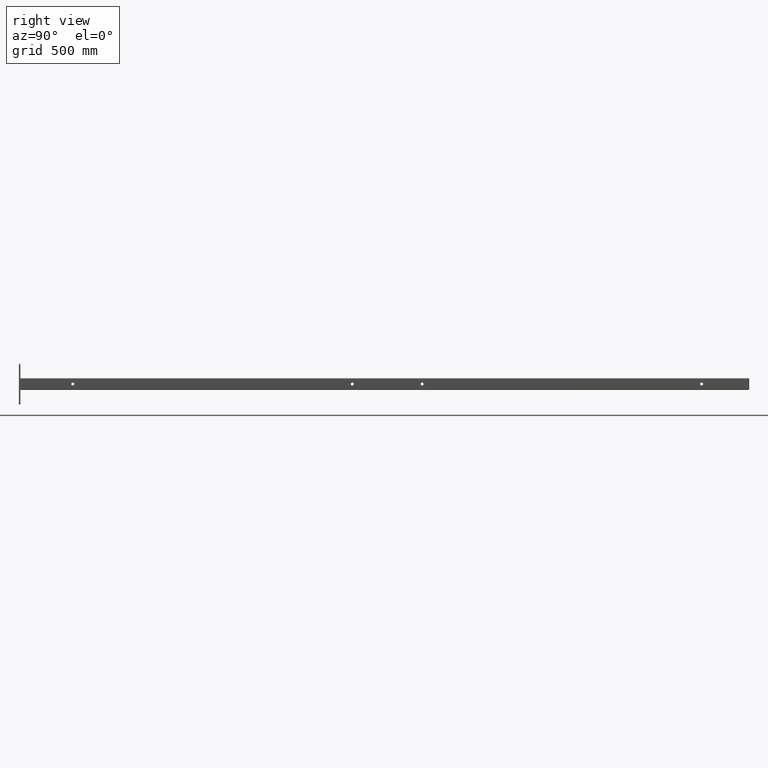
[diagram: clean part render]
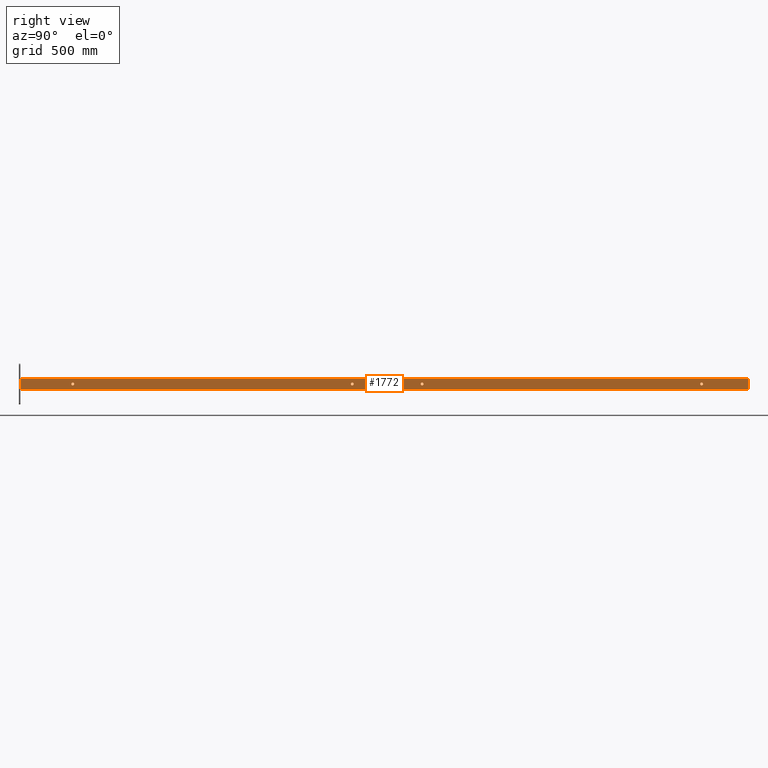
[diagram: same view with one face highlighted and labeled with its STEP entity id]
A machine part, right view. The second image highlights one B-rep face of the part: STEP entity #1772.
In plain terms, the highlighted planar face has unit normal (-1, 0, 0).
Its self-contained STEP definition (entity closure, byte-faithful):
#2 = CARTESIAN_POINT ( 'NONE',  ( 6.735557395310442023E-16, 1.000000000000000000, 5.500000000000001776 ) ) ;
#13 = EDGE_LOOP ( 'NONE', ( #418 ) ) ;
#26 = LINE ( 'NONE', #1633, #1251 ) ;
#82 = CARTESIAN_POINT ( 'NONE',  ( 0.8505999999999999117, 1.000000000000000000, 62.50000000000000000 ) ) ;
#150 = EDGE_CURVE ( 'NONE', #3414, #3571, #2774, .T. ) ;
#243 = VERTEX_POINT ( 'NONE', #2626 ) ;
#250 = EDGE_CURVE ( 'NONE', #2284, #2284, #4103, .T. ) ;
#386 = VECTOR ( 'NONE', #2468, 39.37007874015748143 ) ;
#400 = DIRECTION ( 'NONE',  ( 0.000000000000000000, 0.000000000000000000, 1.000000000000000000 ) ) ;
#403 = DIRECTION ( 'NONE',  ( 0.000000000000000000, 0.000000000000000000, 1.000000000000000000 ) ) ;
#418 = ORIENTED_EDGE ( 'NONE', *, *, #2341, .F. ) ;
#628 = DIRECTION ( 'NONE',  ( 0.000000000000000000, 1.000000000000000000, 0.000000000000000000 ) ) ;
#777 = ORIENTED_EDGE ( 'NONE', *, *, #1004, .F. ) ;
#911 = DIRECTION ( 'NONE',  ( -1.000000000000000000, 0.000000000000000000, 0.000000000000000000 ) ) ;
#1004 = EDGE_CURVE ( 'NONE', #2946, #2946, #2391, .T. ) ;
#1012 = FACE_OUTER_BOUND ( 'NONE', #3705, .T. ) ;
#1162 = ORIENTED_EDGE ( 'NONE', *, *, #150, .T. ) ;
#1186 = CARTESIAN_POINT ( 'NONE',  ( 0.8505999999999999117, 1.000000000000000000, -62.50000000000000000 ) ) ;
#1251 = VECTOR ( 'NONE', #911, 39.37007874015748143 ) ;
#1322 = CARTESIAN_POINT ( 'NONE',  ( -7.960204194457791533E-16, 1.000000000000000000, -6.249999999999997335 ) ) ;
#1345 = CARTESIAN_POINT ( 'NONE',  ( 0.8505999999999999117, 1.000000000000000000, 62.50000000000000000 ) ) ;
#1355 = DIRECTION ( 'NONE',  ( 0.000000000000000000, -1.000000000000000000, 0.000000000000000000 ) ) ;
#1363 = LINE ( 'NONE', #1655, #3857 ) ;
#1460 = CIRCLE ( 'NONE', #1790, 0.2500000000000030531 ) ;
#1536 = DIRECTION ( 'NONE',  ( 0.000000000000000000, 1.000000000000000000, 0.000000000000000000 ) ) ;
#1633 = CARTESIAN_POINT ( 'NONE',  ( 0.8505999999999999117, 1.000000000000000000, 62.50000000000000000 ) ) ;
#1655 = CARTESIAN_POINT ( 'NONE',  ( 0.8505999999999999117, 1.000000000000000000, 62.50000000000000000 ) ) ;
#1693 = VERTEX_POINT ( 'NONE', #1953 ) ;
#1772 = ADVANCED_FACE ( 'NONE', ( #3225, #3870, #2608, #3847, #1012 ), #3554, .F. ) ;
#1790 = AXIS2_PLACEMENT_3D ( 'NONE', #2178, #1536, #2804 ) ;
#1795 = CIRCLE ( 'NONE', #2652, 0.2500000000000030531 ) ;
#1953 = CARTESIAN_POINT ( 'NONE',  ( 6.556435184794231724E-15, 1.000000000000000000, 53.75000000000000711 ) ) ;
#2017 = ORIENTED_EDGE ( 'NONE', *, *, #2875, .F. ) ;
#2178 = CARTESIAN_POINT ( 'NONE',  ( 6.556435184794231724E-15, 1.000000000000000000, 53.50000000000000000 ) ) ;
#2224 = LINE ( 'NONE', #2554, #3522 ) ;
#2225 = ORIENTED_EDGE ( 'NONE', *, *, #2533, .F. ) ;
#2262 = DIRECTION ( 'NONE',  ( -0.000000000000000000, -0.000000000000000000, -1.000000000000000000 ) ) ;
#2284 = VERTEX_POINT ( 'NONE', #3607 ) ;
#2314 = DIRECTION ( 'NONE',  ( 0.000000000000000000, 1.000000000000000000, 0.000000000000000000 ) ) ;
#2341 = EDGE_CURVE ( 'NONE', #1693, #1693, #1460, .T. ) ;
#2361 = DIRECTION ( 'NONE',  ( 0.000000000000000000, 1.000000000000000000, 0.000000000000000000 ) ) ;
#2391 = CIRCLE ( 'NONE', #4049, 0.2499999999999998057 ) ;
#2468 = DIRECTION ( 'NONE',  ( -1.000000000000000000, 0.000000000000000000, 0.000000000000000000 ) ) ;
#2533 = EDGE_CURVE ( 'NONE', #2639, #243, #26, .T. ) ;
#2554 = CARTESIAN_POINT ( 'NONE',  ( -0.8505999999999999117, 1.000000000000000000, 62.50000000000000000 ) ) ;
#2577 = EDGE_LOOP ( 'NONE', ( #2017 ) ) ;
#2608 = FACE_BOUND ( 'NONE', #3361, .T. ) ;
#2623 = DIRECTION ( 'NONE',  ( 0.000000000000000000, -0.000000000000000000, -1.000000000000000000 ) ) ;
#2626 = CARTESIAN_POINT ( 'NONE',  ( -0.8505999999999999117, 1.000000000000000000, 62.50000000000000000 ) ) ;
#2639 = VERTEX_POINT ( 'NONE', #1345 ) ;
#2652 = AXIS2_PLACEMENT_3D ( 'NONE', #3267, #2314, #400 ) ;
#2690 = DIRECTION ( 'NONE',  ( 0.000000000000000000, 0.000000000000000000, 1.000000000000000000 ) ) ;
#2749 = CARTESIAN_POINT ( 'NONE',  ( -0.8505999999999999117, 1.000000000000000000, -62.50000000000000000 ) ) ;
#2774 = LINE ( 'NONE', #1186, #386 ) ;
#2804 = DIRECTION ( 'NONE',  ( 0.000000000000000000, 0.000000000000000000, 1.000000000000000000 ) ) ;
#2875 = EDGE_CURVE ( 'NONE', #3830, #3830, #1795, .T. ) ;
#2946 = VERTEX_POINT ( 'NONE', #1322 ) ;
#2962 = ORIENTED_EDGE ( 'NONE', *, *, #250, .F. ) ;
#3026 = CARTESIAN_POINT ( 'NONE',  ( -7.960204194457791533E-16, 1.000000000000000000, -6.499999999999996447 ) ) ;
#3107 = AXIS2_PLACEMENT_3D ( 'NONE', #2, #628, #403 ) ;
#3146 = EDGE_LOOP ( 'NONE', ( #2962 ) ) ;
#3225 = FACE_BOUND ( 'NONE', #13, .T. ) ;
#3243 = AXIS2_PLACEMENT_3D ( 'NONE', #82, #1355, #2623 ) ;
#3267 = CARTESIAN_POINT ( 'NONE',  ( -6.674325055353075830E-15, 1.000000000000000000, -54.50000000000000711 ) ) ;
#3361 = EDGE_LOOP ( 'NONE', ( #777 ) ) ;
#3414 = VERTEX_POINT ( 'NONE', #3613 ) ;
#3505 = DIRECTION ( 'NONE',  ( -0.000000000000000000, -0.000000000000000000, -1.000000000000000000 ) ) ;
#3522 = VECTOR ( 'NONE', #3505, 39.37007874015748143 ) ;
#3554 = PLANE ( 'NONE',  #3243 ) ;
#3571 = VERTEX_POINT ( 'NONE', #2749 ) ;
#3607 = CARTESIAN_POINT ( 'NONE',  ( 6.735557395310442023E-16, 1.000000000000000000, 5.750000000000001776 ) ) ;
#3613 = CARTESIAN_POINT ( 'NONE',  ( 0.8505999999999999117, 1.000000000000000000, -62.50000000000000000 ) ) ;
#3705 = EDGE_LOOP ( 'NONE', ( #1162, #3742, #2225, #3725 ) ) ;
#3725 = ORIENTED_EDGE ( 'NONE', *, *, #4089, .T. ) ;
#3733 = EDGE_CURVE ( 'NONE', #243, #3571, #2224, .T. ) ;
#3742 = ORIENTED_EDGE ( 'NONE', *, *, #3733, .F. ) ;
#3830 = VERTEX_POINT ( 'NONE', #3878 ) ;
#3847 = FACE_BOUND ( 'NONE', #2577, .T. ) ;
#3857 = VECTOR ( 'NONE', #2262, 39.37007874015748143 ) ;
#3870 = FACE_BOUND ( 'NONE', #3146, .T. ) ;
#3878 = CARTESIAN_POINT ( 'NONE',  ( -6.674325055353075830E-15, 1.000000000000000000, -54.25000000000000000 ) ) ;
#4049 = AXIS2_PLACEMENT_3D ( 'NONE', #3026, #2361, #2690 ) ;
#4089 = EDGE_CURVE ( 'NONE', #2639, #3414, #1363, .T. ) ;
#4103 = CIRCLE ( 'NONE', #3107, 0.2499999999999998057 ) ;